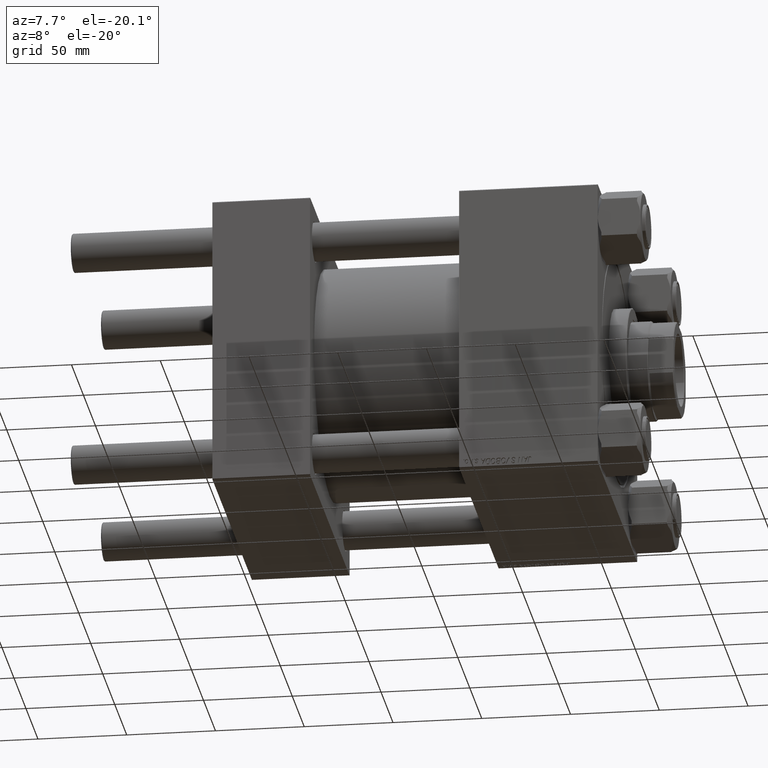
[diagram: clean part render]
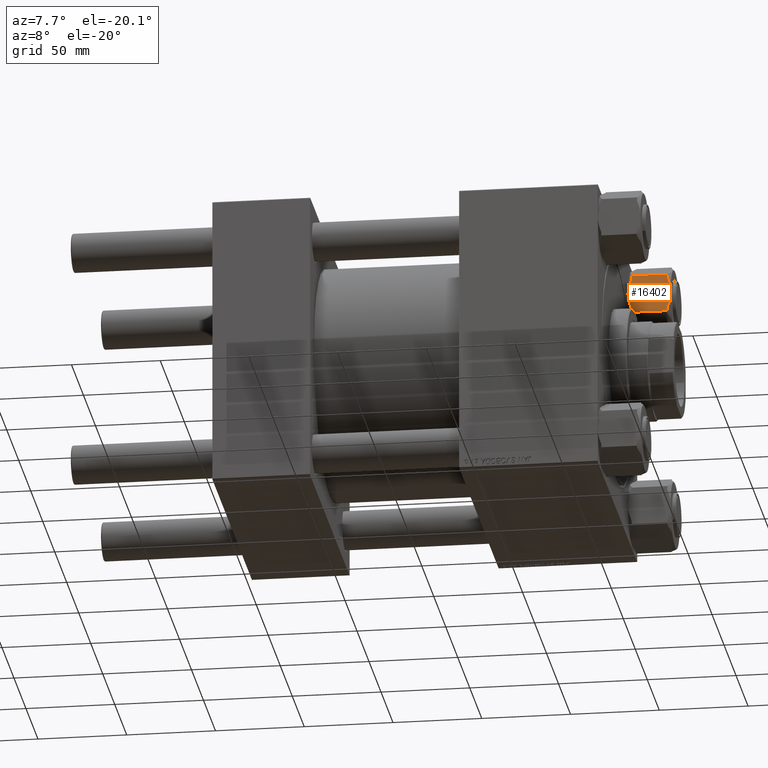
[diagram: same view with one face highlighted and labeled with its STEP entity id]
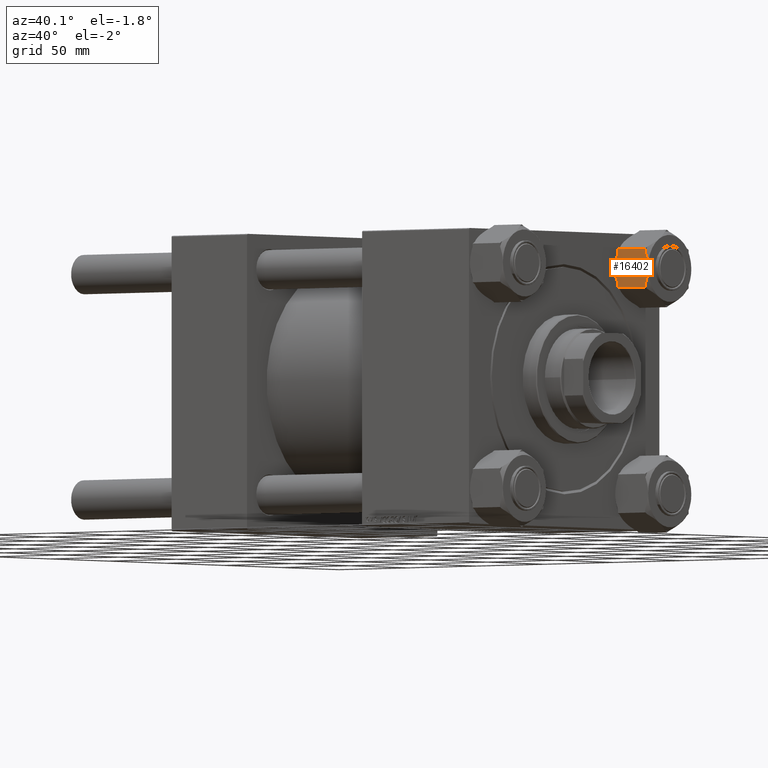
[diagram: same view with one face highlighted and labeled with its STEP entity id]
A machine part, auxiliary view. The second image highlights one B-rep face of the part: STEP entity #16402.
A second angle (auxiliary view) of the same face is appended — the face is thin or edge-on in the first view.
In plain terms, the highlighted planar face has unit normal (0, 1, 0).
Its self-contained STEP definition (entity closure, byte-faithful):
#1358 = FACE_OUTER_BOUND ( 'NONE', #43067, .T. ) ;
#2228 = CARTESIAN_POINT ( 'NONE',  ( -16.98310883762006895, -8.031331082409149502, -23.99999999999999645 ) ) ;
#2366 = VECTOR ( 'NONE', #45910, 999.9999999999998863 ) ;
#2437 = CARTESIAN_POINT ( 'NONE',  ( -15.44401067499411262, -10.69712729791320527, -23.94054132287643455 ) ) ;
#2507 = EDGE_CURVE ( 'NONE', #11423, #2947, #9553, .T. ) ;
#2566 = CARTESIAN_POINT ( 'NONE',  ( -16.40715167818695619, -9.028918145530353101, -3.049318610115475674E-17 ) ) ;
#2623 = CARTESIAN_POINT ( 'NONE',  ( -15.44689116237992010, -10.69213814741042690, 1.084202172485503325E-16 ) ) ;
#2947 = VERTEX_POINT ( 'NONE', #22164 ) ;
#3252 = DIRECTION ( 'NONE',  ( -0.5000000000000004441, 0.8660254037844384856, 0.000000000000000000 ) ) ;
#4173 = DIRECTION ( 'NONE',  ( 0.8660254037844384856, 0.5000000000000004441, 0.000000000000000000 ) ) ;
#4182 = CARTESIAN_POINT ( 'NONE',  ( -21.62000000000000099, -1.258445848729200031E-15, -2.000000000000001776 ) ) ;
#4841 = ORIENTED_EDGE ( 'NONE', *, *, #43631, .F. ) ;
#4856 = VECTOR ( 'NONE', #34911, 1000.000000000000000 ) ;
#5232 = EDGE_CURVE ( 'NONE', #21966, #49831, #33750, .T. ) ;
#6173 = ORIENTED_EDGE ( 'NONE', *, *, #47225, .F. ) ;
#7808 = VECTOR ( 'NONE', #13062, 1000.000000000000000 ) ;
#8628 = AXIS2_PLACEMENT_3D ( 'NONE', #12808, #4173, #28563 ) ;
#8901 = CARTESIAN_POINT ( 'NONE',  ( -16.21499999999999275, -9.361734614909785535, -24.00000000000000000 ) ) ;
#9178 = CARTESIAN_POINT ( 'NONE',  ( -11.77388873931088220, -17.05396496048959420, -2.000000000000000000 ) ) ;
#9553 = LINE ( 'NONE', #20482, #21320 ) ;
#10502 = CARTESIAN_POINT ( 'NONE',  ( -14.69400019531144785, -11.99618355493267785, -0.1908188403547944889 ) ) ;
#10747 = CARTESIAN_POINT ( 'NONE',  ( -13.58342913161265386, -13.91974906267479817, -0.7123487060405540028 ) ) ;
#11363 = ORIENTED_EDGE ( 'NONE', *, *, #31224, .F. ) ;
#11423 = VERTEX_POINT ( 'NONE', #26153 ) ;
#11965 = CARTESIAN_POINT ( 'NONE',  ( -17.73599980468853587, -6.727285674886896771, -23.80918115964520965 ) ) ;
#12808 = CARTESIAN_POINT ( 'NONE',  ( -10.80999999999998096, -18.72346922981957817, -24.00000000000000000 ) ) ;
#12887 = ORIENTED_EDGE ( 'NONE', *, *, #2507, .F. ) ;
#13062 = DIRECTION ( 'NONE',  ( -0.000000000000000000, -0.000000000000000000, 1.000000000000000000 ) ) ;
#14260 = CARTESIAN_POINT ( 'NONE',  ( -18.12021770021051736, -6.061800758665626176, -0.3703068632035674823 ) ) ;
#14569 = CARTESIAN_POINT ( 'NONE',  ( -16.21499999999999275, -9.361734614909785535, 0.000000000000000000 ) ) ;
#15296 = B_SPLINE_CURVE_WITH_KNOTS ( 'NONE', 3,
 ( #18440, #21997, #37273, #44917, #41090, #33947, #2437, #45164, #40595, #25807 ),
 .UNSPECIFIED., .F., .F.,
 ( 4, 2, 2, 2, 4 ),
 ( 5.007809737522038475E-07, 0.004555175037830387977, 0.006832512166258704507, 0.007971180730472862339, 0.009109849294687026242 ),
 .UNSPECIFIED. ) ;
#15342 = CARTESIAN_POINT ( 'NONE',  ( -20.65611126068911219, -1.669504269329982415, -22.00000000000000000 ) ) ;
#16287 = CARTESIAN_POINT ( 'NONE',  ( -20.65611126068911219, -1.669504269329982415, -22.00000000000000000 ) ) ;
#16329 = EDGE_CURVE ( 'NONE', #40637, #46785, #42577, .T. ) ;
#16402 = ADVANCED_FACE ( 'NONE', ( #1358 ), #47642, .F. ) ;
#18078 = CARTESIAN_POINT ( 'NONE',  ( -16.21499999999999275, -9.361734614909785535, 0.000000000000000000 ) ) ;
#18136 = CARTESIAN_POINT ( 'NONE',  ( -11.77388873931088220, -17.05396496048959420, -2.000000000000000000 ) ) ;
#18440 = CARTESIAN_POINT ( 'NONE',  ( -11.77388873931088220, -17.05396496048959420, -22.00000000000000000 ) ) ;
#18553 = CARTESIAN_POINT ( 'NONE',  ( -20.65611126068911219, -1.669504269329982415, -2.000000000000000000 ) ) ;
#19160 = VECTOR ( 'NONE', #42576, 999.9999999999998863 ) ;
#19683 = CARTESIAN_POINT ( 'NONE',  ( -10.80999999999998096, -18.72346922981957817, -2.000000000000001776 ) ) ;
#20096 = CARTESIAN_POINT ( 'NONE',  ( -19.21365948880450247, -4.167904025701862913, -23.07491496110390017 ) ) ;
#20482 = CARTESIAN_POINT ( 'NONE',  ( -10.80999999999998096, -18.72346922981957817, -22.00000000000000000 ) ) ;
#20599 = CARTESIAN_POINT ( 'NONE',  ( -19.94246781890513986, -2.905570968988129277, -22.58212083167677164 ) ) ;
#21299 = ORIENTED_EDGE ( 'NONE', *, *, #35694, .F. ) ;
#21320 = VECTOR ( 'NONE', #47951, 999.9999999999998863 ) ;
#21889 = CARTESIAN_POINT ( 'NONE',  ( -16.98598932500587111, -8.026341931906371130, -0.05945867712356565221 ) ) ;
#21966 = VERTEX_POINT ( 'NONE', #32555 ) ;
#21997 = CARTESIAN_POINT ( 'NONE',  ( -12.48121638205395278, -15.82883754566066514, -22.60633105863622916 ) ) ;
#22164 = CARTESIAN_POINT ( 'NONE',  ( -11.77388873931088220, -17.05396496048959420, -22.00000000000000000 ) ) ;
#24949 = CARTESIAN_POINT ( 'NONE',  ( -20.65611126068911219, -1.669504269329982415, -2.000000000000000000 ) ) ;
#25693 = CARTESIAN_POINT ( 'NONE',  ( -17.74616263960889739, -6.709683128455900203, -0.2338220771833977030 ) ) ;
#25807 = CARTESIAN_POINT ( 'NONE',  ( -16.21499999999999275, -9.361734614909785535, -24.00000000000000000 ) ) ;
#25940 = CARTESIAN_POINT ( 'NONE',  ( -16.60104632518791590, -8.693082765609052132, -0.01197337667082346013 ) ) ;
#26090 = EDGE_CURVE ( 'NONE', #2947, #21966, #15296, .T. ) ;
#26153 = CARTESIAN_POINT ( 'NONE',  ( -10.80999999999998096, -18.72346922981957817, -22.00000000000000000 ) ) ;
#26877 = LINE ( 'NONE', #30958, #49322 ) ;
#27044 = CARTESIAN_POINT ( 'NONE',  ( -10.80999999999998096, -18.72346922981957817, -2.000000000000001776 ) ) ;
#27856 = CARTESIAN_POINT ( 'NONE',  ( -21.62000000000000099, -1.258445848729200031E-15, -22.00000000000000000 ) ) ;
#27956 = CARTESIAN_POINT ( 'NONE',  ( -18.84657086838732098, -4.803720167144771125, -23.28765129395944555 ) ) ;
#28075 = VERTEX_POINT ( 'NONE', #33782 ) ;
#28209 = CARTESIAN_POINT ( 'NONE',  ( -20.30204076991166673, -2.282772348817363461, -22.30351413196914834 ) ) ;
#28563 = DIRECTION ( 'NONE',  ( -0.5000000000000003331, 0.8660254037844383745, 0.000000000000000000 ) ) ;
#29567 = B_SPLINE_CURVE_WITH_KNOTS ( 'NONE', 3,
 ( #14569, #2623, #10502, #10747, #29578, #41776, #30073, #18136 ),
 .UNSPECIFIED., .F., .F.,
 ( 4, 2, 2, 4 ),
 ( 0.009109849294687024507, 0.01366157320126709478, 0.01593743515455713078, 0.01821329710784716852 ),
 .UNSPECIFIED. ) ;
#29578 = CARTESIAN_POINT ( 'NONE',  ( -13.21634051119548126, -14.55556520411771437, -0.9250850388961004978 ) ) ;
#30073 = CARTESIAN_POINT ( 'NONE',  ( -12.12795923008832766, -16.44069688100221782, -1.696485868030862987 ) ) ;
#30958 = CARTESIAN_POINT ( 'NONE',  ( -10.80999999999998096, -18.72346922981957817, -22.00000000000000000 ) ) ;
#31123 = LINE ( 'NONE', #27044, #19160 ) ;
#31224 = EDGE_CURVE ( 'NONE', #48982, #35991, #29567, .T. ) ;
#32250 = ORIENTED_EDGE ( 'NONE', *, *, #26090, .F. ) ;
#32555 = CARTESIAN_POINT ( 'NONE',  ( -16.21499999999999275, -9.361734614909785535, -24.00000000000000000 ) ) ;
#33335 = CARTESIAN_POINT ( 'NONE',  ( -19.94878361794603450, -2.894631684158906815, -1.393668941363774172 ) ) ;
#33717 = LINE ( 'NONE', #49225, #4856 ) ;
#33745 = ORIENTED_EDGE ( 'NONE', *, *, #49906, .T. ) ;
#33750 = B_SPLINE_CURVE_WITH_KNOTS ( 'NONE', 3,
 ( #8901, #2228, #11965, #27956, #20096, #20599, #28209, #16287 ),
 .UNSPECIFIED., .F., .F.,
 ( 4, 2, 2, 4 ),
 ( 0.009109849294687026242, 0.01366157320126709651, 0.01593743515455713078, 0.01821329710784716852 ),
 .UNSPECIFIED. ) ;
#33782 = CARTESIAN_POINT ( 'NONE',  ( -10.80999999999998096, -18.72346922981957817, -2.000000000000001776 ) ) ;
#33947 = CARTESIAN_POINT ( 'NONE',  ( -15.25296234352181557, -11.02803271472448010, -23.90516550165011367 ) ) ;
#34197 = LINE ( 'NONE', #19683, #2366 ) ;
#34355 = VERTEX_POINT ( 'NONE', #18553 ) ;
#34868 = ORIENTED_EDGE ( 'NONE', *, *, #5232, .F. ) ;
#34911 = DIRECTION ( 'NONE',  ( -0.000000000000000000, -0.000000000000000000, 1.000000000000000000 ) ) ;
#35694 = EDGE_CURVE ( 'NONE', #46785, #34355, #31123, .T. ) ;
#35991 = VERTEX_POINT ( 'NONE', #9178 ) ;
#37273 = CARTESIAN_POINT ( 'NONE',  ( -13.20154625327792530, -14.58118961049118845, -23.10638014572221621 ) ) ;
#38770 = B_SPLINE_CURVE_WITH_KNOTS ( 'NONE', 3,
 ( #24949, #33335, #48846, #14260, #25693, #41223, #21889, #25940, #2566, #18078 ),
 .UNSPECIFIED., .F., .F.,
 ( 4, 2, 2, 2, 4 ),
 ( 5.007809737505383690E-07, 0.004555175037830387109, 0.006832512166258706242, 0.007971180730472865808, 0.009109849294687024507 ),
 .UNSPECIFIED. ) ;
#39757 = CARTESIAN_POINT ( 'NONE',  ( -21.62000000000000099, -1.258445848729200031E-15, -24.00000000000000000 ) ) ;
#40595 = CARTESIAN_POINT ( 'NONE',  ( -16.02284832181302932, -9.694551084289219745, -23.99999999999998934 ) ) ;
#40637 = VERTEX_POINT ( 'NONE', #27856 ) ;
#41090 = CARTESIAN_POINT ( 'NONE',  ( -14.68383736039109344, -12.01378610136367087, -23.76617792281659902 ) ) ;
#41223 = CARTESIAN_POINT ( 'NONE',  ( -17.17703765647816994, -7.695436515095090080, -0.09483449834989436666 ) ) ;
#41776 = CARTESIAN_POINT ( 'NONE',  ( -12.48753218109484742, -15.81789826083144668, -1.417879168323226580 ) ) ;
#42537 = CARTESIAN_POINT ( 'NONE',  ( -16.21499999999999275, -9.361734614909785535, 0.000000000000000000 ) ) ;
#42576 = DIRECTION ( 'NONE',  ( 0.5000000000000004441, -0.8660254037844384856, 0.000000000000000000 ) ) ;
#42577 = LINE ( 'NONE', #39757, #7808 ) ;
#43067 = EDGE_LOOP ( 'NONE', ( #12887, #33745, #46026, #11363, #6173, #21299, #48338, #4841, #34868, #32250 ) ) ;
#43631 = EDGE_CURVE ( 'NONE', #49831, #40637, #26877, .T. ) ;
#44917 = CARTESIAN_POINT ( 'NONE',  ( -14.30978229978946636, -12.66166847115395022, -23.62969313679642980 ) ) ;
#45164 = CARTESIAN_POINT ( 'NONE',  ( -15.82895367481207138, -10.03038646421052427, -23.98802662332916924 ) ) ;
#45910 = DIRECTION ( 'NONE',  ( 0.5000000000000004441, -0.8660254037844384856, 0.000000000000000000 ) ) ;
#46026 = ORIENTED_EDGE ( 'NONE', *, *, #46803, .F. ) ;
#46785 = VERTEX_POINT ( 'NONE', #4182 ) ;
#46803 = EDGE_CURVE ( 'NONE', #35991, #28075, #34197, .T. ) ;
#47225 = EDGE_CURVE ( 'NONE', #34355, #48982, #38770, .T. ) ;
#47642 = PLANE ( 'NONE',  #8628 ) ;
#47951 = DIRECTION ( 'NONE',  ( -0.5000000000000004441, 0.8660254037844384856, 0.000000000000000000 ) ) ;
#48338 = ORIENTED_EDGE ( 'NONE', *, *, #16329, .F. ) ;
#48846 = CARTESIAN_POINT ( 'NONE',  ( -19.22845374672205665, -4.142279619328383511, -0.8936198542777903375 ) ) ;
#48982 = VERTEX_POINT ( 'NONE', #42537 ) ;
#49225 = CARTESIAN_POINT ( 'NONE',  ( -10.80999999999998096, -18.72346922981957817, -24.00000000000000000 ) ) ;
#49322 = VECTOR ( 'NONE', #3252, 999.9999999999998863 ) ;
#49831 = VERTEX_POINT ( 'NONE', #15342 ) ;
#49906 = EDGE_CURVE ( 'NONE', #11423, #28075, #33717, .T. ) ;